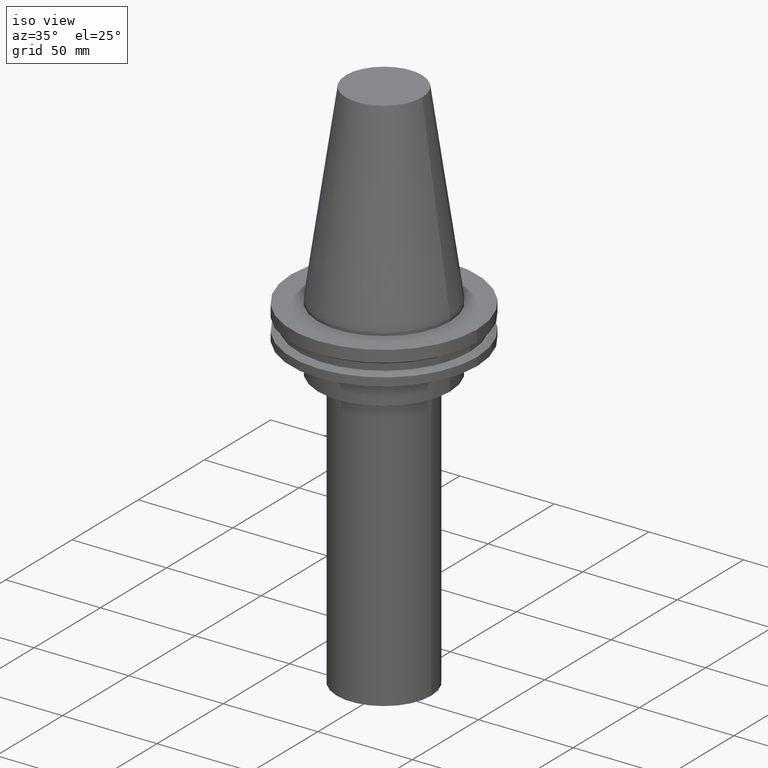
[diagram: clean part render]
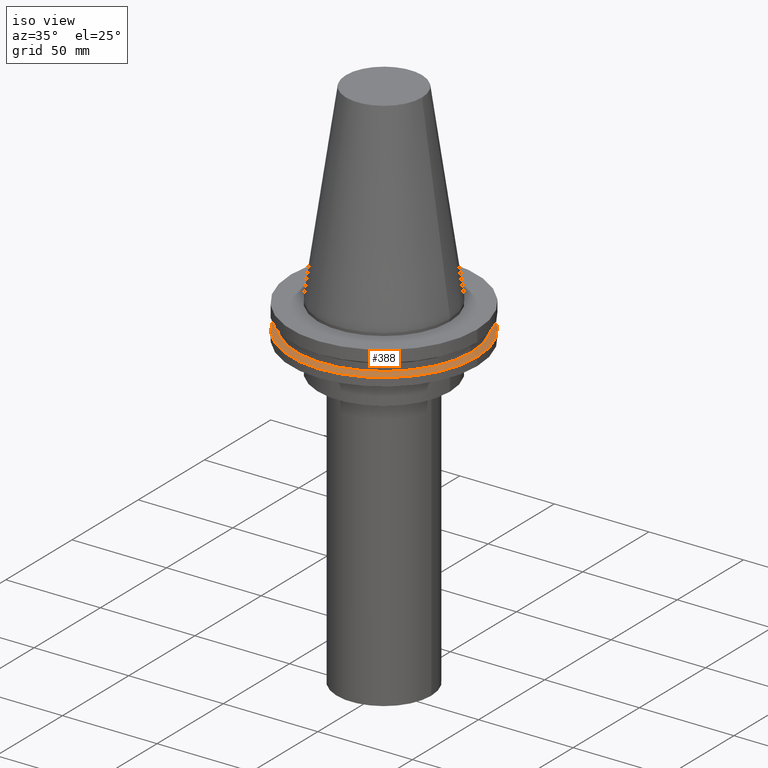
[diagram: same view with one face highlighted and labeled with its STEP entity id]
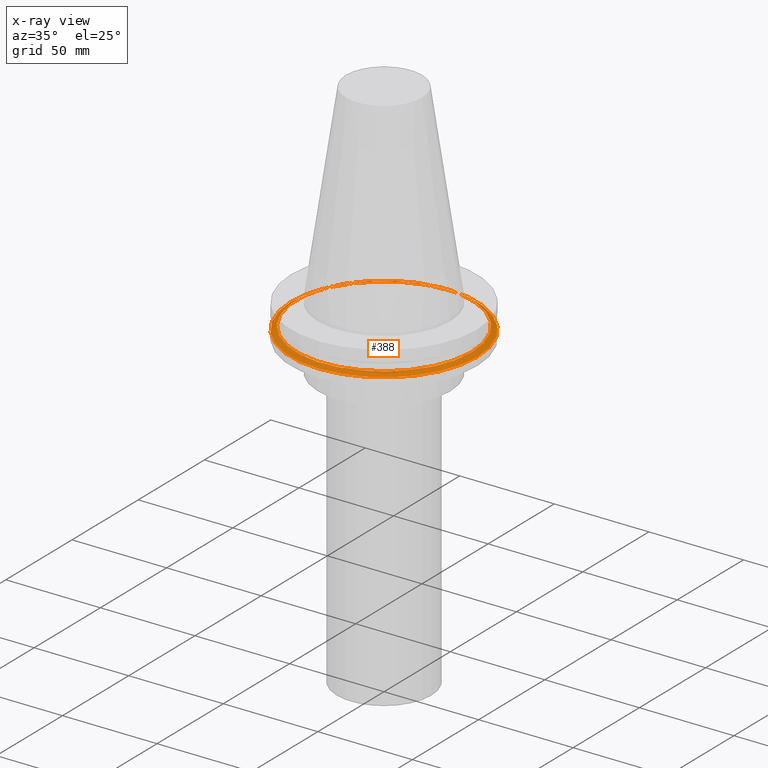
[diagram: x-ray of the same camera — body ghosted, the highlighted face saturated]
A machine part, iso view. The second image highlights one B-rep face of the part: STEP entity #388.
The next image is the same camera in x-ray: the body ghosted, the highlighted face saturated — about 4% of this face is hidden behind the body in this view.
In plain terms, the highlighted conical surface has half-angle 60 deg.
Its self-contained STEP definition (entity closure, byte-faithful):
#7 = FACE_OUTER_BOUND ( 'NONE', #293, .T. ) ;
#26 = DIRECTION ( 'NONE',  ( -0.000000000000000000, -0.000000000000000000, 1.000000000000000000 ) ) ;
#43 = CARTESIAN_POINT ( 'NONE',  ( 49.21499999999998920, 0.000000000000000000, -14.65761014474876944 ) ) ;
#45 = VERTEX_POINT ( 'NONE', #43 ) ;
#54 = DIRECTION ( 'NONE',  ( 1.000000000000000000, 0.000000000000000000, 0.000000000000000000 ) ) ;
#63 = CONICAL_SURFACE ( 'NONE', #379, 49.21499999999998920, 1.047197551196554333 ) ;
#75 = EDGE_CURVE ( 'NONE', #265, #265, #281, .T. ) ;
#86 = DIRECTION ( 'NONE',  ( -0.000000000000000000, -0.000000000000000000, 1.000000000000000000 ) ) ;
#94 = AXIS2_PLACEMENT_3D ( 'NONE', #245, #86, #368 ) ;
#99 = DIRECTION ( 'NONE',  ( 0.000000000000000000, 0.000000000000000000, -1.000000000000000000 ) ) ;
#194 = EDGE_CURVE ( 'NONE', #45, #45, #247, .T. ) ;
#203 = ORIENTED_EDGE ( 'NONE', *, *, #194, .T. ) ;
#216 = DIRECTION ( 'NONE',  ( -1.000000000000000000, 0.000000000000000000, 0.000000000000000000 ) ) ;
#245 = CARTESIAN_POINT ( 'NONE',  ( 0.000000000000000000, 0.000000000000000000, -14.65761014474876944 ) ) ;
#247 = CIRCLE ( 'NONE', #94, 49.21499999999998920 ) ;
#253 = AXIS2_PLACEMENT_3D ( 'NONE', #336, #26, #54 ) ;
#265 = VERTEX_POINT ( 'NONE', #323 ) ;
#281 = CIRCLE ( 'NONE', #253, 46.43919780457007818 ) ;
#293 = EDGE_LOOP ( 'NONE', ( #203 ) ) ;
#323 = CARTESIAN_POINT ( 'NONE',  ( 46.43919780457007818, 0.000000000000000000, -13.05499999999999794 ) ) ;
#336 = CARTESIAN_POINT ( 'NONE',  ( 0.000000000000000000, 0.000000000000000000, -13.05499999999999794 ) ) ;
#341 = EDGE_LOOP ( 'NONE', ( #357 ) ) ;
#346 = CARTESIAN_POINT ( 'NONE',  ( 0.000000000000000000, 0.000000000000000000, -14.65761014474876944 ) ) ;
#357 = ORIENTED_EDGE ( 'NONE', *, *, #75, .F. ) ;
#368 = DIRECTION ( 'NONE',  ( 1.000000000000000000, 0.000000000000000000, 0.000000000000000000 ) ) ;
#372 = FACE_BOUND ( 'NONE', #341, .T. ) ;
#379 = AXIS2_PLACEMENT_3D ( 'NONE', #346, #99, #216 ) ;
#388 = ADVANCED_FACE ( 'NONE', ( #372, #7 ), #63, .T. ) ;